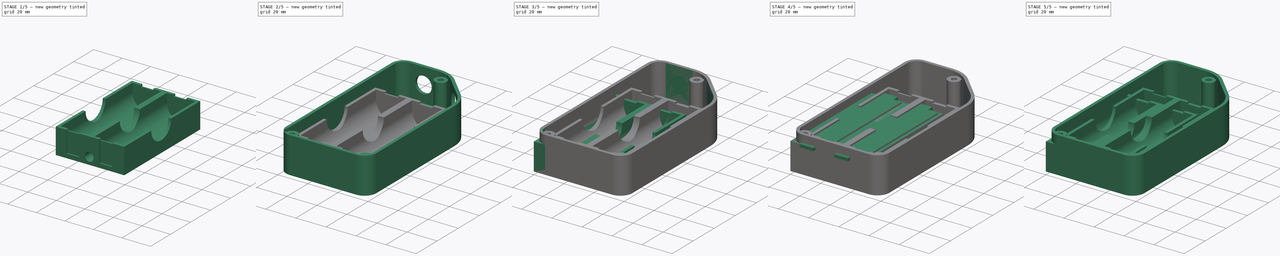
[diagram: build sequence overview — one tinted view per stage of 5, left to right]
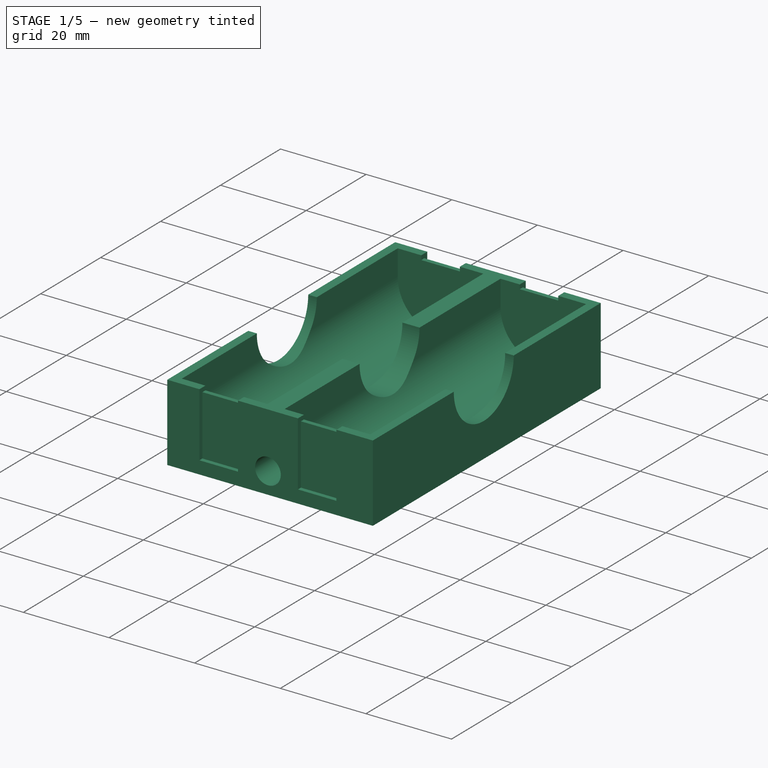
[diagram: stage 1 of 5 — iso view after this stage's code; geometry added in this stage tinted green]
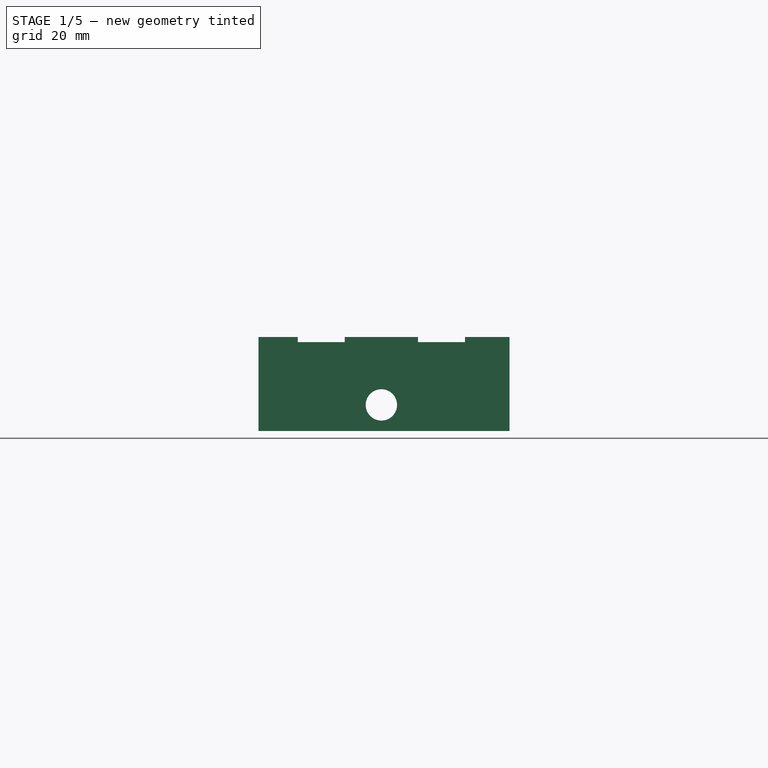
[diagram: stage 1 of 5 — front view after this stage's code; geometry added in this stage tinted green]
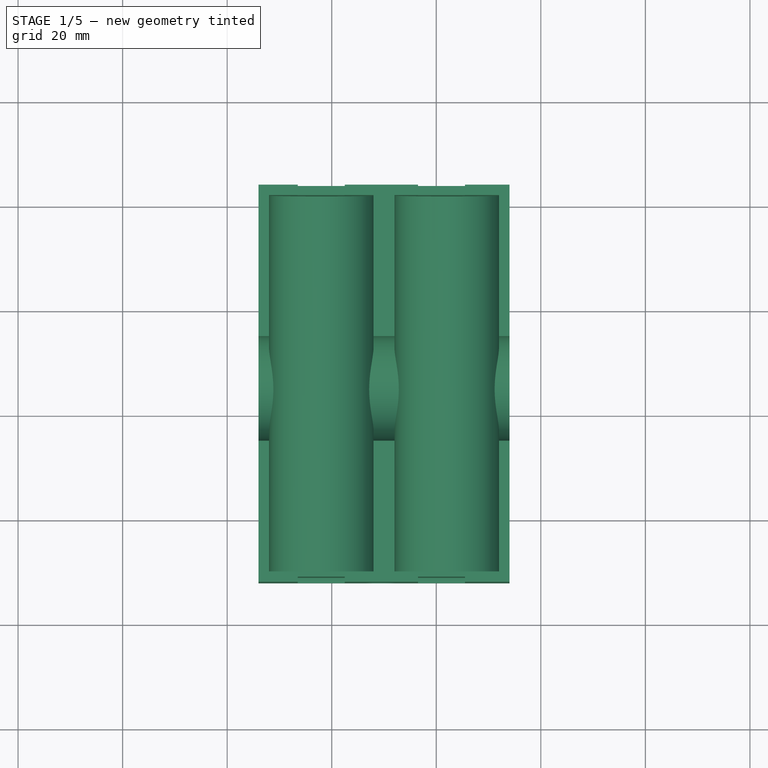
[diagram: stage 1 of 5 — top view after this stage's code; geometry added in this stage tinted green]
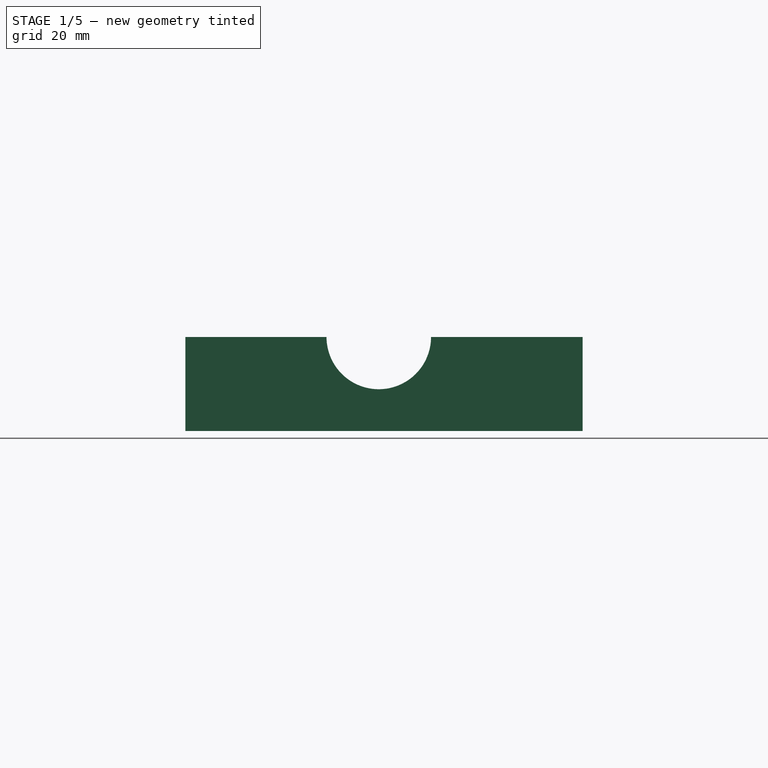
[diagram: stage 1 of 5 — right view after this stage's code; geometry added in this stage tinted green]
FCSTD DOCUMENT
Label: Unified
objects: Sketcher::SketchObject×15, PartDesign::Pocket×13, PartDesign::Pad×6, Part::Cut×4, App::DocumentObjectGroup×2, Part::MultiFuse×1
note: 45 computed .brp shape members not serialized (recipe doc carries the construction recipe); baked Part::Feature solids carry a one-line shape summary decoded from their .brp

FEATURE [Sketcher::SketchObject] Sketch
  sketch-geometry (10):
    g0: LineSegment StartX=60 StartY=8 StartZ=0 EndX=60 EndY=82 EndZ=0
    g1: LineSegment StartX=0 StartY=108 StartZ=0 EndX=0 EndY=8 EndZ=0
    g2: LineSegment StartX=8 StartY=116 StartZ=0 EndX=26 EndY=116 EndZ=0
    g3: LineSegment StartX=8 StartY=0 StartZ=0 EndX=52 EndY=0 EndZ=0
    g4: ArcOfCircle CenterX=8 CenterY=108 CenterZ=0 NormalX=0 NormalY=0 NormalZ=1 Radius=8 StartAngle=1.5708 EndAngle=3.14159
    g5: ArcOfCircle CenterX=52 CenterY=8 CenterZ=0 NormalX=0 NormalY=0 NormalZ=1 Radius=8 StartAngle=4.71239 EndAngle=6.28319
    g6: ArcOfCircle CenterX=8 CenterY=8 CenterZ=0 NormalX=0 NormalY=0 NormalZ=1 Radius=8 StartAngle=3.14159 EndAngle=4.71239
    g7: LineSegment StartX=40.5416 StartY=109.977 StartZ=0 EndX=53.9767 EndY=96.5416 EndZ=0
    g8: ArcOfCircle CenterX=26 CenterY=95.435 CenterZ=0 NormalX=0 NormalY=0 NormalZ=1 Radius=20.565 StartAngle=0.785399 EndAngle=1.5708
    g9: ArcOfCircle CenterX=39.435 CenterY=82 CenterZ=0 NormalX=0 NormalY=0 NormalZ=1 Radius=20.565 StartAngle=6.28319 EndAngle=7.06858
  constraints (34):
    c: Vertical(g0)
    c: Vertical(g1)
    c: Horizontal(g2)
    c: Horizontal(g3)
    c: Coincident(g6,g1)
    c: Coincident(g3,g6)
    c: Coincident(g3,g5)
    c: Coincident(g5,g0)
    c: Coincident(g2,g4)
    c: Coincident(g1,g4)
    c: Radius(g4) = 8
    c: Equal(g5,g6)
    c: Tangent(g4,g2)
    c: Tangent(g5,g3)
    c: DistanceX(g1,g0) = 60
    c: DistanceX(g1) = 0
    c: Tangent(g1,g4)
    c: Tangent(g3,g6)
    c: Tangent(g6,g1)
    c: DistanceY(g3) = 0
    c: Angle(g7) = -0.785398
    c: Coincident(g7,g8)
    c: Coincident(g8,g2)
    c: Tangent(g8,g2)
    c: Tangent(g7,g8)
    c: Coincident(g9,g7)
    c: Tangent(g9,g7)
    c: Coincident(g9,g0)
    c: Distance(g7) = 19
    c: Distance(g2) = 18
    c: Equal(g9,g8)
    c: Equal(g4,g6)
    c: Tangent(g0,g9)
    c: Tangent(g5,g0)
FEATURE [PartDesign::Pad] Pad
  Length = 24
  MirroredExtent = false
  Sketch = -> Sketch
FEATURE [Sketcher::SketchObject] Sketch001
  Placement = pos=(0,0,24) rot=(0,0,1;0rad)
  Support = -> Pad [Face12]
  sketch-geometry (10):
    g0: ArcOfCircle CenterX=8 CenterY=108 CenterZ=0 NormalX=0 NormalY=0 NormalZ=1 Radius=6 StartAngle=1.57079 EndAngle=3.14159
    g1: ArcOfCircle CenterX=26 CenterY=95.435 CenterZ=0 NormalX=0 NormalY=0 NormalZ=1 Radius=18.565 StartAngle=0.785398 EndAngle=1.5708
    g2: ArcOfCircle CenterX=39.435 CenterY=82 CenterZ=0 NormalX=0 NormalY=0 NormalZ=1 Radius=18.565 StartAngle=6.28319 EndAngle=7.06858
    g3: ArcOfCircle CenterX=52 CenterY=8 CenterZ=0 NormalX=0 NormalY=0 NormalZ=1 Radius=6 StartAngle=4.71239 EndAngle=6.28319
    g4: ArcOfCircle CenterX=8 CenterY=8 CenterZ=0 NormalX=0 NormalY=0 NormalZ=1 Radius=6 StartAngle=3.14159 EndAngle=4.71239
    g5: LineSegment StartX=8.00001 StartY=114 StartZ=0 EndX=26 EndY=114 EndZ=0
    g6: LineSegment StartX=2 StartY=108 StartZ=0 EndX=2 EndY=8 EndZ=0
    g7: LineSegment StartX=39.1274 StartY=108.562 StartZ=0 EndX=52.5624 EndY=95.1274 EndZ=0
    g8: LineSegment StartX=58 StartY=82 StartZ=0 EndX=58 EndY=8 EndZ=0
    g9: LineSegment StartX=8 StartY=2 StartZ=0 EndX=52 EndY=2 EndZ=0
  constraints (35):
    c: Horizontal(g5)
    c: Tangent(g5,g1)
    c: Coincident(g1,g5)
    c: Coincident(g0,g5)
    c: Vertical(g6)
    c: Tangent(g6,g0)
    c: Coincident(g4,g6)
    c: Coincident(g0,g6)
    c: Coincident(g2,g7)
    c: Coincident(g1,g7)
    c: Vertical(g8)
    c: Coincident(g3,g8)
    c: Coincident(g2,g8)
    c: Horizontal(g9)
    c: Coincident(g9,g3)
    c: Coincident(g9,g4)
    c: Radius(g0) = 6
    c: Equal(g0,g4)
    c: Tangent(g7,g1)
    c: Tangent(g2,g8)
    c: DistanceY(g2,g3) = -80
    c: Equal(g3,g4)
    c: Distance(g7) = 19
    c: Distance(g5) = 18
    c: DistanceX(g4) = 8
    c: DistanceY(g4) = 8
    c: Tangent(g2,g7)
    c: Tangent(g4,g6)
    c: Tangent(g4,g9)
    c: Tangent(g5,g0)
    c: Tangent(g3,g8)
    c: Tangent(g3,g9)
    c: DistanceX(g4,g3) = 44
    c: DistanceY(g6) = -100
    c: Radius(g2) = 18.565
FEATURE [PartDesign::Pocket] Pocket
  Length = 22
  Sketch = -> Sketch001
  Type = 0
FEATURE [Sketcher::SketchObject] Sketch002
  Placement = pos=(75.2591,75.2592,0) rot=(0.281085,0.678598,0.678598;2.59356rad)
  Support = -> Pocket [Face7]
  sketch-geometry (1):
    g0: Circle CenterX=39.5 CenterY=13 CenterZ=0 NormalX=0 NormalY=0 NormalZ=1 Radius=8.25
  constraints (3):
    c: Radius(g0) = 8.25
    c: DistanceX(g0) = 39.5
    c: DistanceY(g0) = 13
FEATURE [PartDesign::Pocket] Pocket001
  Length = 3
  Sketch = -> Sketch002
  Type = 0
FEATURE [Sketcher::SketchObject] Sketch003
  Placement = pos=(0,116,0) rot=(0,0.707107,0.707107;3.14159rad)
  Support = -> Pocket001 [Face11]
  sketch-geometry (1):
    g0: Circle CenterX=-17 CenterY=13 CenterZ=0 NormalX=0 NormalY=0 NormalZ=1 Radius=5.5
  constraints (3):
    c: Radius(g0) = 5.5
    c: DistanceX(g0) = -17
    c: DistanceY(g0) = 13
FEATURE [PartDesign::Pocket] Pocket002  label="Body"
  Length = 3
  Sketch = -> Sketch003
  Type = 0
FEATURE [Sketcher::SketchObject] Sketch019
  Placement = pos=(0,76,0) rot=(0,0.707107,0.707107;3.14159rad)
  Support = -> Pocket002 [Face5]
  sketch-geometry (9):
    g0: LineSegment StartX=-39.5 StartY=17 StartZ=0 EndX=-30.5 EndY=17 EndZ=0
    g1: LineSegment StartX=-30.5 StartY=17 StartZ=0 EndX=-30.5 EndY=3 EndZ=0
    g2: LineSegment StartX=-30.5 StartY=3 StartZ=0 EndX=-39.5 EndY=3 EndZ=0
    g3: LineSegment StartX=-39.5 StartY=3 StartZ=0 EndX=-39.5 EndY=17 EndZ=0
    g4: LineSegment StartX=-16.5 StartY=17 StartZ=0 EndX=-7.5 EndY=17 EndZ=0
    g5: LineSegment StartX=-7.5 StartY=17 StartZ=0 EndX=-7.5 EndY=3 EndZ=0
    g6: LineSegment StartX=-7.5 StartY=3 StartZ=0 EndX=-16.5 EndY=3 EndZ=0
    g7: LineSegment StartX=-16.5 StartY=3 StartZ=0 EndX=-16.5 EndY=17 EndZ=0
    g8: LineSegment [constr] StartX=-30.5 StartY=17 StartZ=0 EndX=-16.5 EndY=17 EndZ=0
  constraints (26):
    c: Coincident(g0,g1)
    c: Coincident(g1,g2)
    c: Coincident(g2,g3)
    c: Coincident(g3,g0)
    c: Horizontal(g0)
    c: Horizontal(g2)
    c: Vertical(g1)
    c: Vertical(g3)
    c: Coincident(g4,g5)
    c: Coincident(g5,g6)
    c: Coincident(g6,g7)
    c: Coincident(g7,g4)
    c: Horizontal(g4)
    c: Horizontal(g6)
    c: Vertical(g5)
    c: Vertical(g7)
    c: DistanceY(g3) = 14
    c: Equal(g7,g3)
    c: DistanceX(g0) = 9
    c: Equal(g4,g0)
    c: Horizontal(g8)
    c: Coincident(g8,g4)
    c: Coincident(g8,g0)
    c: DistanceX(g2) = -39.5
    c: DistanceY(g2) = 3
    c: DistanceX(g0,g4) = 14
FEATURE [PartDesign::Pocket] Pocket014
  Length = 1
  Placement = pos=(6,8,2) rot=(0,0,1;0rad)
  Sketch = -> Sketch019
  Type = 0
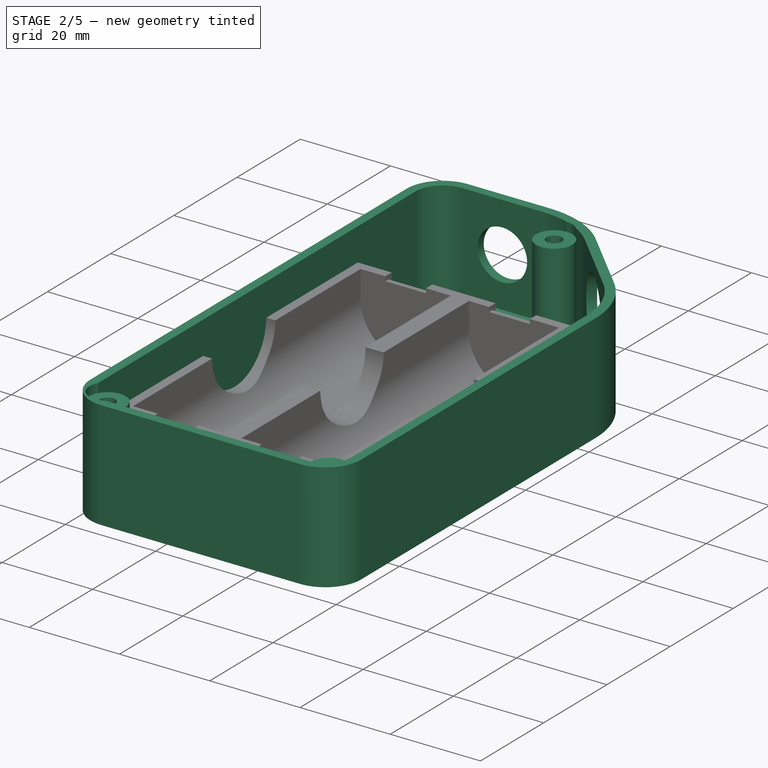
[diagram: stage 2 of 5 — iso view after this stage's code; geometry added in this stage tinted green]
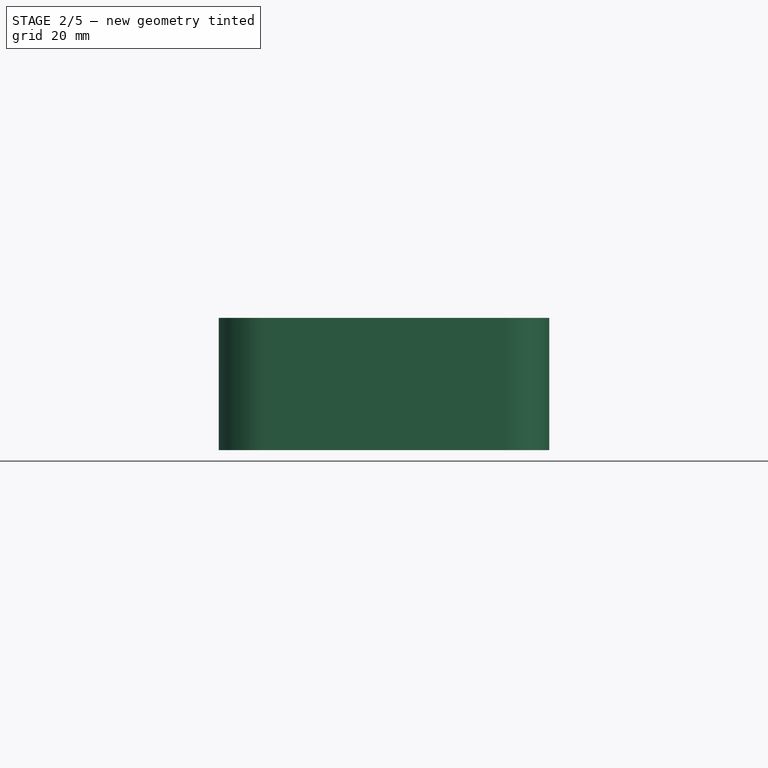
[diagram: stage 2 of 5 — front view after this stage's code; geometry added in this stage tinted green]
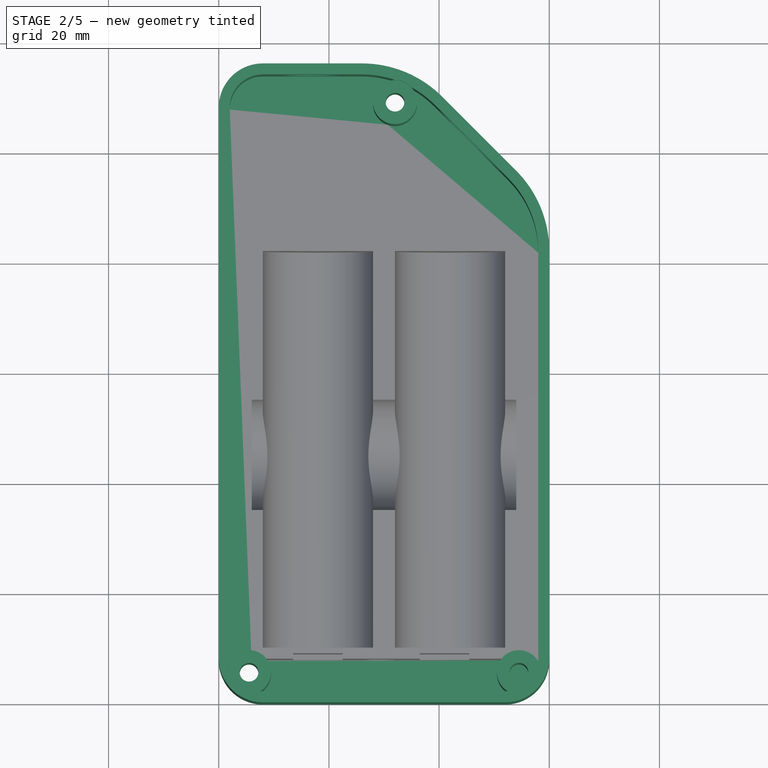
[diagram: stage 2 of 5 — top view after this stage's code; geometry added in this stage tinted green]
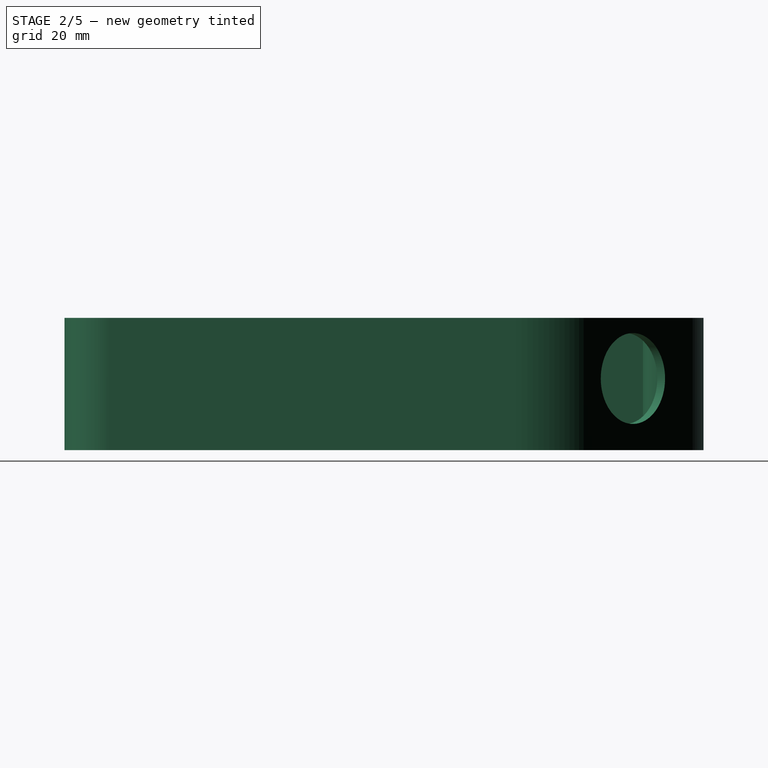
[diagram: stage 2 of 5 — right view after this stage's code; geometry added in this stage tinted green]
FEATURE [Sketcher::SketchObject] Sketch009
  Placement = pos=(0,0,0) rot=(1,0,0;3.14159rad)
  Support = -> Pocket002 [Face4]
  sketch-geometry (1):
    g0: Circle CenterX=32 CenterY=-109 CenterZ=0 NormalX=0 NormalY=0 NormalZ=1 Radius=4
  constraints (3):
    c: Radius(g0) = 4
    c: DistanceX(g0) = 32
    c: DistanceY(g0) = -109
FEATURE [PartDesign::Pocket] Pocket004  label="PostPocket001"
  Length = 30
  Sketch = -> Sketch009
  Type = 0
FEATURE [Sketcher::SketchObject] Sketch010
  Placement = pos=(0,0,0) rot=(1,0,0;3.14159rad)
  Support = -> Pocket004 [Face4]
  sketch-geometry (1):
    g0: Circle CenterX=5.5 CenterY=-5.5 CenterZ=0 NormalX=0 NormalY=0 NormalZ=1 Radius=4
  constraints (3):
    c: Radius(g0) = 4
    c: DistanceX(g0) = 5.5
    c: DistanceY(g0) = -5.5
FEATURE [PartDesign::Pocket] Pocket005  label="PostPocket002"
  Length = 30
  Sketch = -> Sketch010
  Type = 0
FEATURE [PartDesign::Pocket] Pocket008  label="Post001"
  Length = 30
  Placement = pos=(5.5,5.5,22) rot=(1,0,0;3.14159rad)
  Sketch = -> Sketch002
  Type = 0
FEATURE [PartDesign::Pocket] Pocket009  label="Post002"
  Length = 30
  Placement = pos=(54.5,5.5,22) rot=(1,0,0;3.14159rad)
  Sketch = -> Sketch002
  Type = 0
FEATURE [PartDesign::Pocket] Pocket010  label="Post003"
  Length = 30
  Placement = pos=(32,109,22) rot=(1,0,0;3.14159rad)
  Sketch = -> Sketch002
  Type = 0
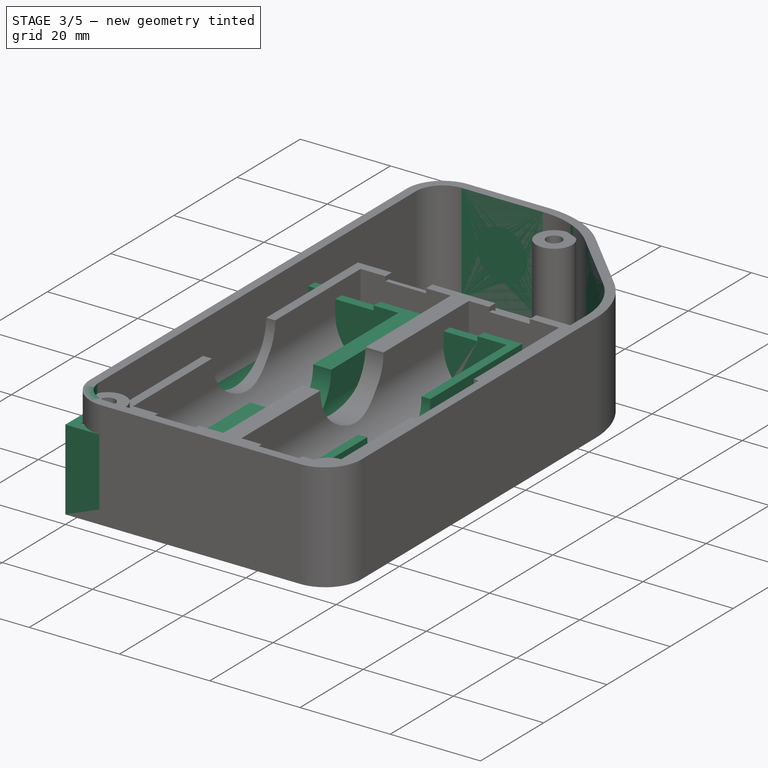
[diagram: stage 3 of 5 — iso view after this stage's code; geometry added in this stage tinted green]
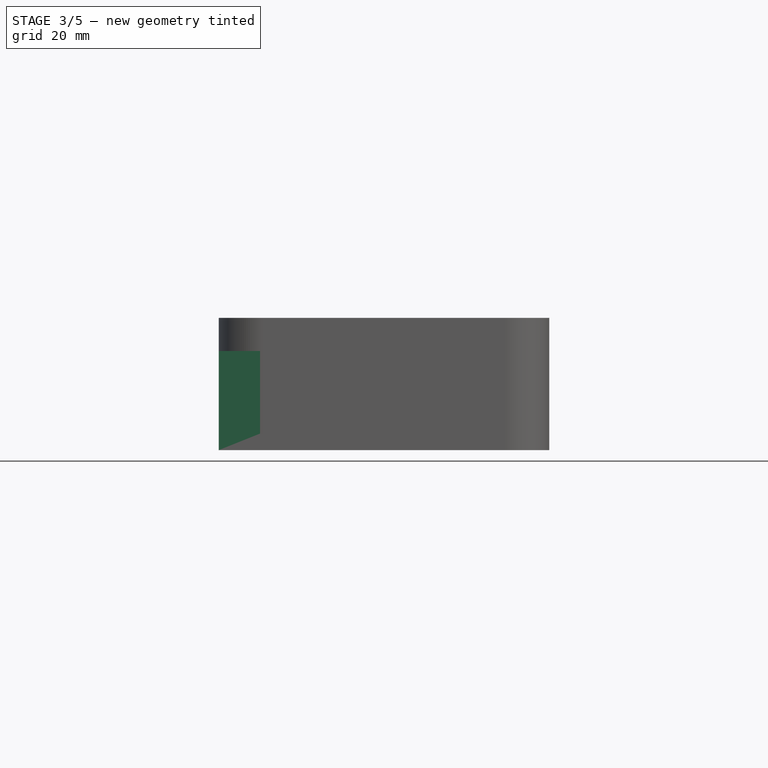
[diagram: stage 3 of 5 — front view after this stage's code; geometry added in this stage tinted green]
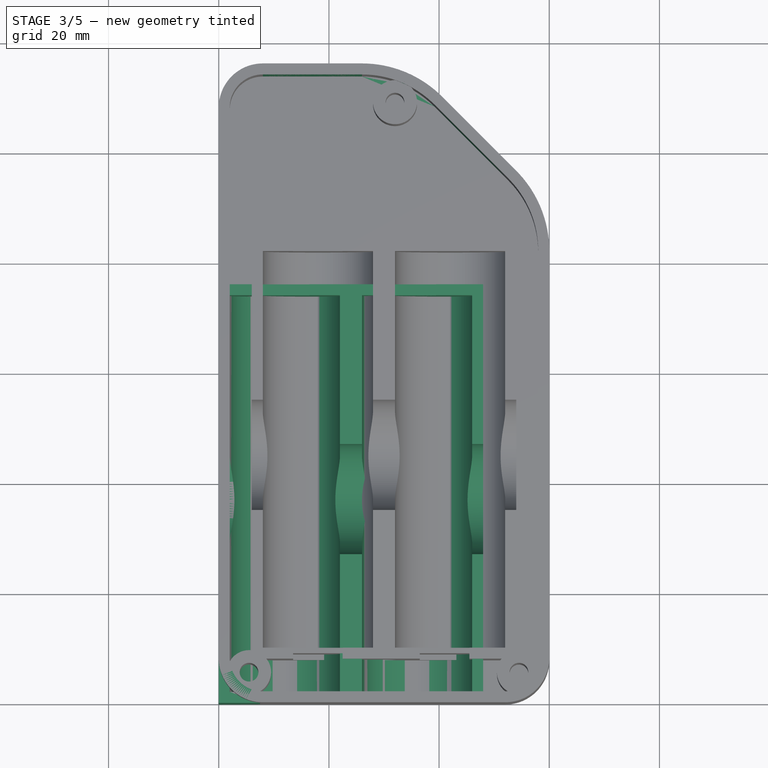
[diagram: stage 3 of 5 — top view after this stage's code; geometry added in this stage tinted green]
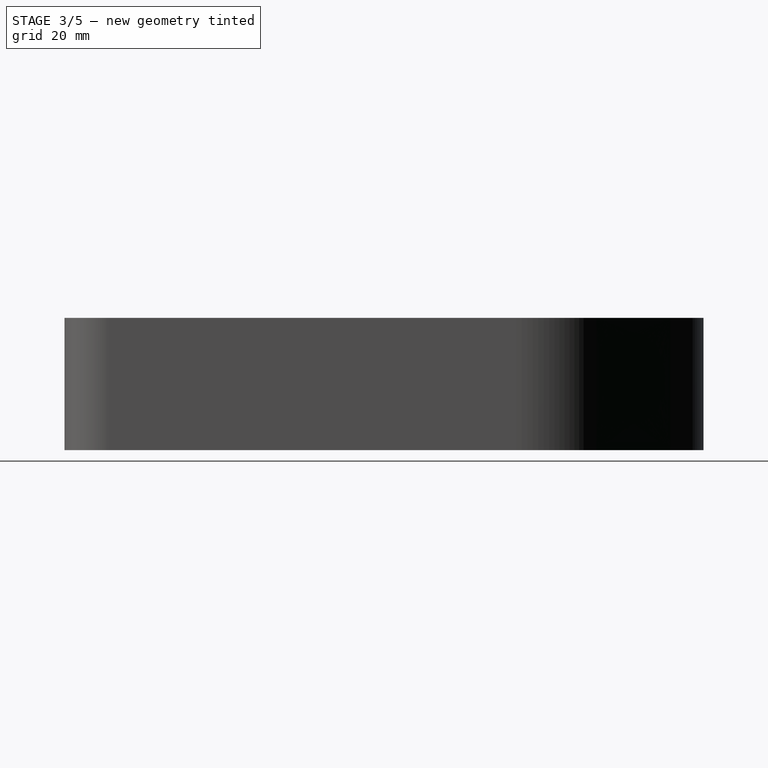
[diagram: stage 3 of 5 — right view after this stage's code; geometry added in this stage tinted green]
FEATURE [Sketcher::SketchObject] Sketch011
  Placement = pos=(0,0,0) rot=(1,0,0;3.14159rad)
  Support = -> Pocket005 [Face4]
  sketch-geometry (1):
    g0: Circle CenterX=54.5 CenterY=-5.5 CenterZ=0 NormalX=0 NormalY=0 NormalZ=1 Radius=4
  constraints (3):
    c: Radius(g0) = 4
    c: DistanceX(g0) = 54.5
    c: DistanceY(g0) = -5.5
FEATURE [PartDesign::Pocket] Pocket006  label="PostPocket003"
  Length = 30
  Sketch = -> Sketch011
  Type = 0
FEATURE [Sketcher::SketchObject] Sketch017
  Placement = pos=(0,0,0) rot=(1,0,0;1.5708rad)
  Support = -> Pocket [Face18]
  sketch-geometry (1):
    g0: Circle CenterX=23.5 CenterY=5 CenterZ=0 NormalX=0 NormalY=0 NormalZ=1 Radius=2.5
  constraints (3):
    c: Radius(g0) = 2.5
    c: DistanceX(g0) = 23.5
    c: DistanceY(g0) = 5
FEATURE [PartDesign::Pocket] Pocket012
  Length = 76
  Sketch = -> Sketch017
  Type = 0
FEATURE [Sketcher::SketchObject] Sketch018
  Placement = pos=(0,0,0) rot=(1,0,0;1.5708rad)
  Support = -> Pocket001 [Face22]
  sketch-geometry (9):
    g0: LineSegment StartX=7.5 StartY=17 StartZ=0 EndX=16.5 EndY=17 EndZ=0
    g1: LineSegment StartX=16.5 StartY=17 StartZ=0 EndX=16.5 EndY=3 EndZ=0
    g2: LineSegment StartX=16.5 StartY=3 StartZ=0 EndX=7.5 EndY=3 EndZ=0
    g3: LineSegment StartX=7.5 StartY=3 StartZ=0 EndX=7.5 EndY=17 EndZ=0
    g4: LineSegment StartX=30.5 StartY=3 StartZ=0 EndX=39.5 EndY=3 EndZ=0
    g5: LineSegment StartX=39.5 StartY=3 StartZ=0 EndX=39.5 EndY=17 EndZ=0
    g6: LineSegment StartX=39.5 StartY=17 StartZ=0 EndX=30.5 EndY=17 EndZ=0
    g7: LineSegment StartX=30.5 StartY=17 StartZ=0 EndX=30.5 EndY=3 EndZ=0
    g8: LineSegment [constr] StartX=30.5 StartY=17 StartZ=0 EndX=16.5 EndY=17 EndZ=0
  constraints (26):
    c: Coincident(g0,g1)
    c: Coincident(g1,g2)
    c: Coincident(g2,g3)
    c: Coincident(g3,g0)
    c: Horizontal(g0)
    c: Horizontal(g2)
    c: Vertical(g1)
    c: Vertical(g3)
    c: DistanceX(g0) = 9
    c: DistanceY(g3) = 14
    c: DistanceX(g2) = 7.5
    c: DistanceY(g2) = 3
    c: Coincident(g4,g5)
    c: Coincident(g5,g6)
    c: Coincident(g6,g7)
    c: Coincident(g7,g4)
    c: Horizontal(g4)
    c: Horizontal(g6)
    c: Vertical(g5)
    c: Vertical(g7)
    c: Equal(g6,g0)
    c: Equal(g7,g3)
    c: Horizontal(g8)
    c: Coincident(g8,g6)
    c: Coincident(g8,g0)
    c: DistanceX(g8) = -14
FEATURE [PartDesign::Pocket] Pocket013
  Length = 1
  Sketch = -> Sketch018
  Type = 0
FEATURE [App::DocumentObjectGroup] Group  label="BatterySled"
  Group = -> [Pocket011,Pocket012,Pocket013,Pocket014,Cut003]
FEATURE [App::DocumentObjectGroup] Group001  label="Posts"
  Group = -> [Pocket004,Pocket010,Pocket009,Pocket008,Pocket006,Pocket005]
FEATURE [Part::MultiFuse] Fusion
  Shapes = -> [Pocket014,Pocket010,Pocket009,Pocket008,Pocket006]
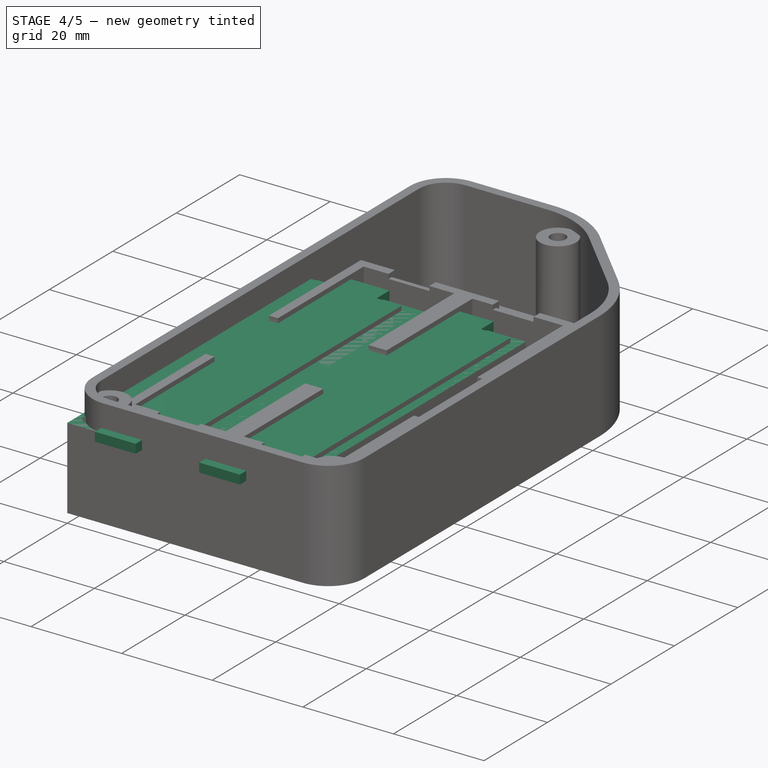
[diagram: stage 4 of 5 — iso view after this stage's code; geometry added in this stage tinted green]
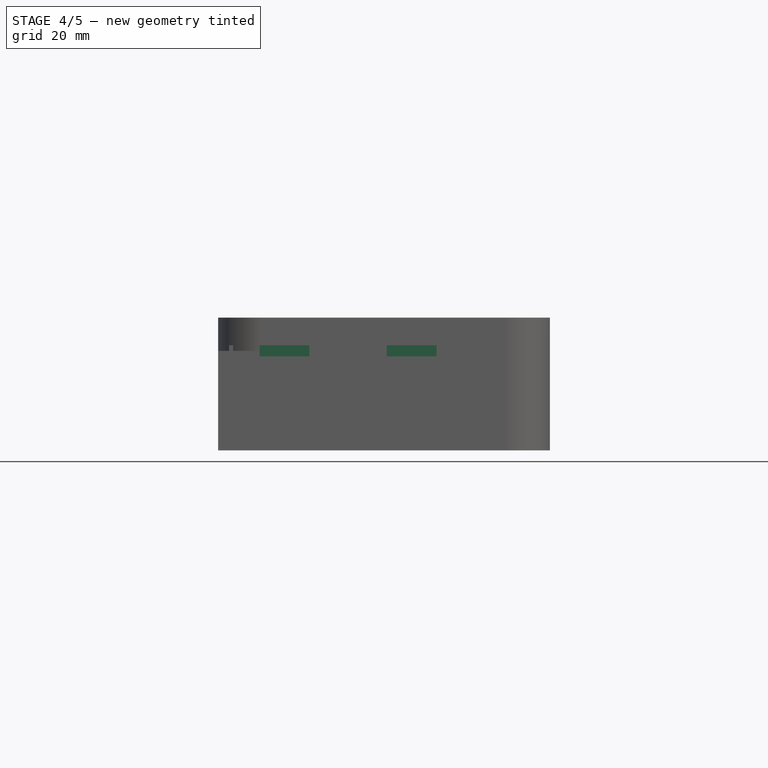
[diagram: stage 4 of 5 — front view after this stage's code; geometry added in this stage tinted green]
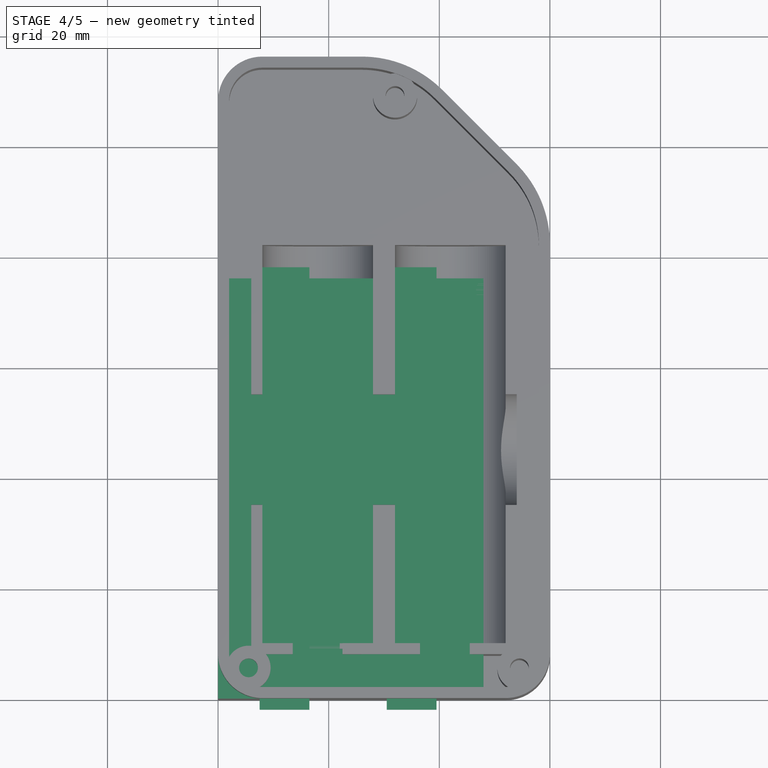
[diagram: stage 4 of 5 — top view after this stage's code; geometry added in this stage tinted green]
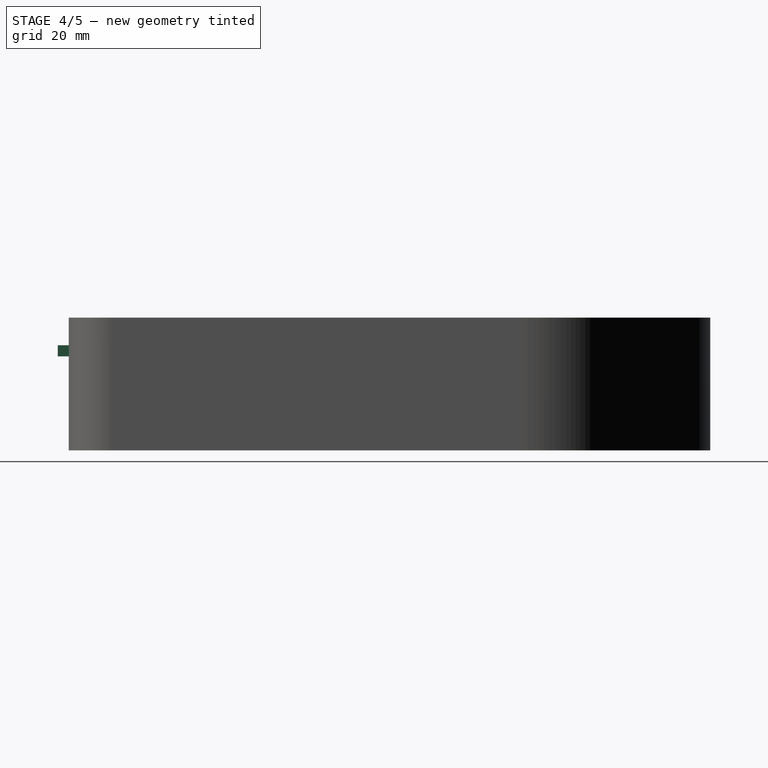
[diagram: stage 4 of 5 — right view after this stage's code; geometry added in this stage tinted green]
FEATURE [Sketcher::SketchObject] Sketch012
  sketch-geometry (4):
    g0: LineSegment StartX=0 StartY=0 StartZ=0 EndX=48 EndY=0 EndZ=0
    g1: LineSegment StartX=48 StartY=0 StartZ=0 EndX=48 EndY=76 EndZ=0
    g2: LineSegment StartX=48 StartY=76 StartZ=0 EndX=0 EndY=76 EndZ=0
    g3: LineSegment StartX=0 StartY=76 StartZ=0 EndX=0 EndY=0 EndZ=0
  constraints (12):
    c: Coincident(g0,g1)
    c: Coincident(g1,g2)
    c: Coincident(g2,g3)
    c: Coincident(g3,g0)
    c: Horizontal(g0)
    c: Horizontal(g2)
    c: Vertical(g1)
    c: Vertical(g3)
    c: DistanceY(g3) = -76
    c: DistanceX(g0) = 48
    c: DistanceX(g0) = 0
    c: DistanceY(g0) = 0
FEATURE [PartDesign::Pad] Pad001
  Length = 18
  MirroredExtent = false
  Sketch = -> Sketch012
FEATURE [Sketcher::SketchObject] Sketch013
  Placement = pos=(0,0,0) rot=(1,0,0;1.5708rad)
  sketch-geometry (4):
    g0: LineSegment StartX=2 StartY=19 StartZ=0 EndX=22 EndY=19 EndZ=0
    g1: LineSegment StartX=22 StartY=19 StartZ=0 EndX=22 EndY=12 EndZ=0
    g2: LineSegment StartX=2 StartY=12 StartZ=0 EndX=2 EndY=19 EndZ=0
    g3: ArcOfCircle CenterX=12 CenterY=12 CenterZ=0 NormalX=0 NormalY=0 NormalZ=1 Radius=10 StartAngle=3.1416 EndAngle=6.28319
  constraints (13):
    c: Coincident(g0,g1)
    c: Coincident(g2,g0)
    c: Horizontal(g0)
    c: Vertical(g1)
    c: Vertical(g2)
    c: Coincident(g3,g1)
    c: Coincident(g3,g2)
    c: Tangent(g3,g2)
    c: DistanceX(g0) = 20
    c: DistanceY(g2) = 7
    c: Tangent(g3,g1)
    c: DistanceX(g3) = 12
    c: DistanceY(g3) = 12
FEATURE [PartDesign::Pad] Pad002
  Length = 72
  MirroredExtent = false
  Placement = pos=(0,74,0) rot=(0,0,1;0rad)
  Sketch = -> Sketch013
FEATURE [Sketcher::SketchObject] Sketch014
  Placement = pos=(0,0,0) rot=(1,0,0;1.5708rad)
  sketch-geometry (4):
    g0: LineSegment StartX=25 StartY=19 StartZ=0 EndX=45 EndY=19 EndZ=0
    g1: LineSegment StartX=45 StartY=19 StartZ=0 EndX=45 EndY=12 EndZ=0
    g2: LineSegment StartX=25 StartY=12 StartZ=0 EndX=25 EndY=19 EndZ=0
    g3: ArcOfCircle CenterX=35 CenterY=12 CenterZ=0 NormalX=0 NormalY=0 NormalZ=1 Radius=10 StartAngle=3.14159 EndAngle=6.28319
  constraints (13):
    c: Coincident(g0,g1)
    c: Coincident(g2,g0)
    c: Horizontal(g0)
    c: Vertical(g1)
    c: Vertical(g2)
    c: Coincident(g3,g1)
    c: Coincident(g3,g2)
    c: Tangent(g3,g2)
    c: DistanceX(g0) = 20
    c: DistanceY(g2) = 7
    c: Tangent(g3,g1)
    c: DistanceX(g3) = 35
    c: DistanceY(g3) = 12
FEATURE [PartDesign::Pad] Pad003
  Length = 72
  MirroredExtent = false
  Placement = pos=(1,74,0) rot=(0,0,1;0rad)
  Sketch = -> Sketch014
FEATURE [Sketcher::SketchObject] Sketch015
  Placement = pos=(0,0,0) rot=(1,0,0;1.5708rad)
  sketch-geometry (4):
    g0: LineSegment StartX=7.5 StartY=17 StartZ=0 EndX=16.5 EndY=17 EndZ=0
    g1: LineSegment StartX=16.5 StartY=17 StartZ=0 EndX=16.5 EndY=19 EndZ=0
    g2: LineSegment StartX=16.5 StartY=19 StartZ=0 EndX=7.5 EndY=19 EndZ=0
    g3: LineSegment StartX=7.5 StartY=19 StartZ=0 EndX=7.5 EndY=17 EndZ=0
  constraints (12):
    c: Coincident(g0,g1)
    c: Coincident(g1,g2)
    c: Coincident(g2,g3)
    c: Coincident(g3,g0)
    c: Horizontal(g0)
    c: Horizontal(g2)
    c: Vertical(g1)
    c: Vertical(g3)
    c: DistanceX(g0) = 9
    c: DistanceY(g3) = -2
    c: DistanceX(g0) = 7.5
    c: DistanceY(g0) = 17
FEATURE [PartDesign::Pad] Pad004
  Length = 80
  MirroredExtent = false
  Placement = pos=(0,78,0) rot=(0,0,1;0rad)
  Sketch = -> Sketch015
FEATURE [PartDesign::Pad] Pad005
  Length = 80
  MirroredExtent = false
  Placement = pos=(23,78,0) rot=(0,0,1;0rad)
  Sketch = -> Sketch015
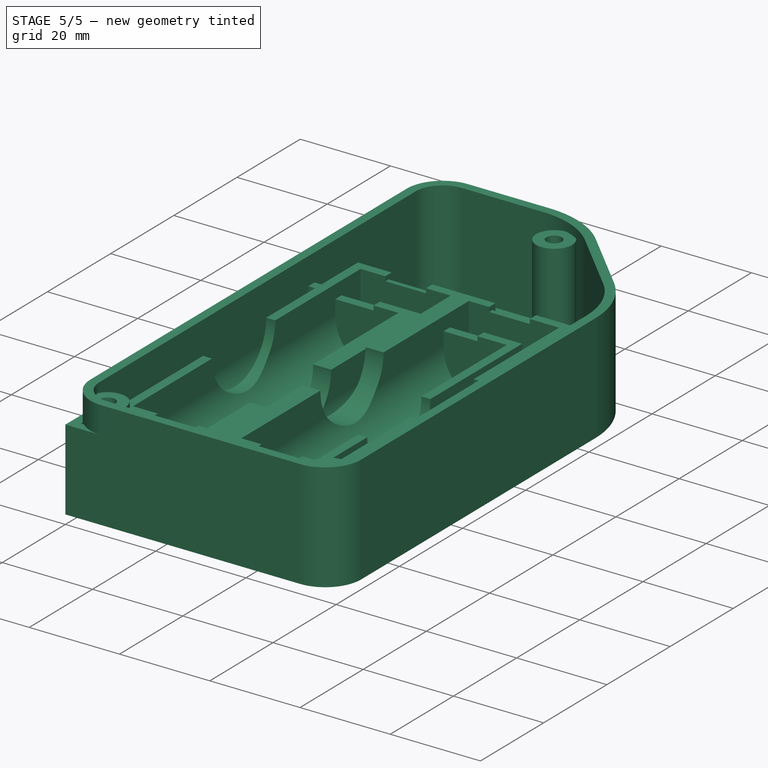
[diagram: stage 5 of 5 — iso view after this stage's code; geometry added in this stage tinted green]
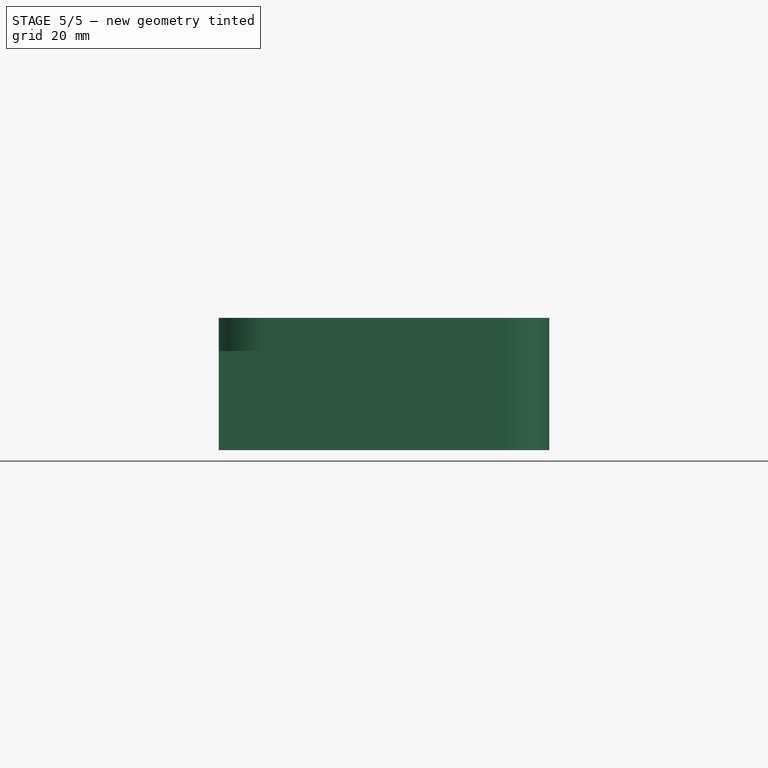
[diagram: stage 5 of 5 — front view after this stage's code; geometry added in this stage tinted green]
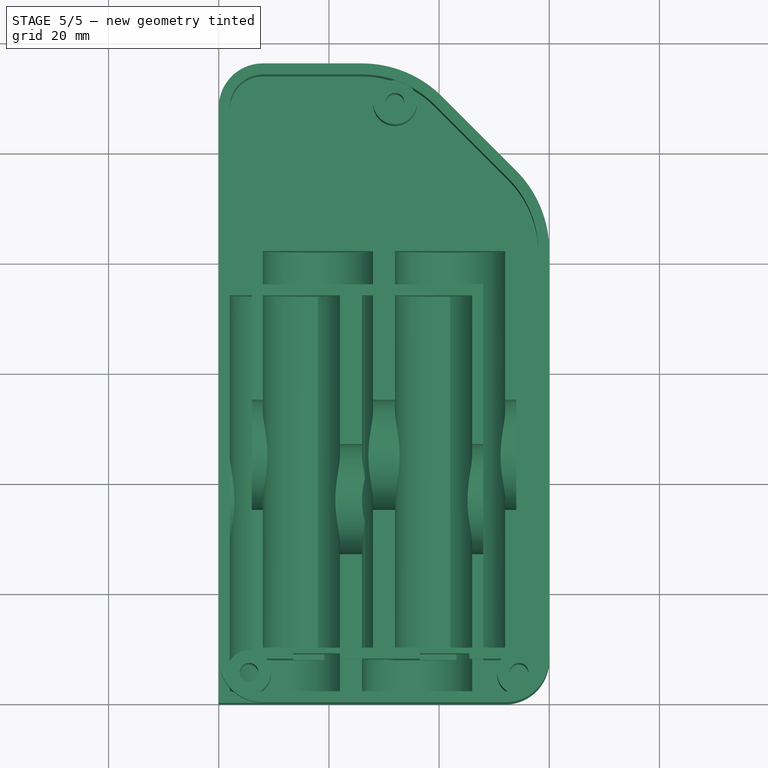
[diagram: stage 5 of 5 — top view after this stage's code; geometry added in this stage tinted green]
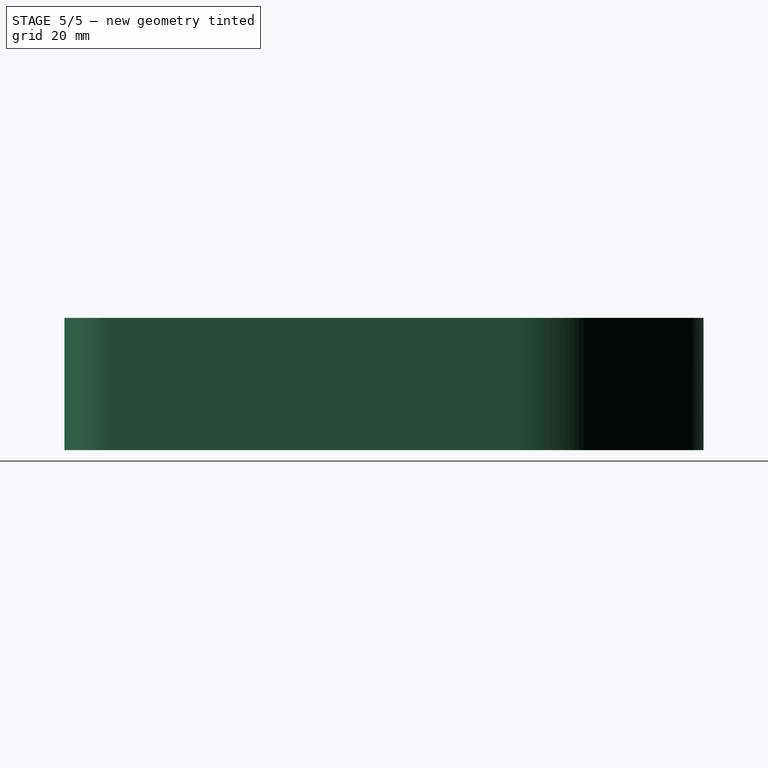
[diagram: stage 5 of 5 — right view after this stage's code; geometry added in this stage tinted green]
FEATURE [Part::Cut] Cut
  Base = -> Pad001
  Tool = -> Pad002
FEATURE [Part::Cut] Cut001
  Base = -> Cut
  Tool = -> Pad003
FEATURE [Part::Cut] Cut002
  Base = -> Cut001
  Tool = -> Pad004
FEATURE [Part::Cut] Cut003
  Base = -> Cut002
  Tool = -> Pad005
FEATURE [Sketcher::SketchObject] Sketch016
  Placement = pos=(48,0,0) rot=(0.57735,0.57735,0.57735;2.0944rad)
  Support = -> Cut003 [Face8]
  sketch-geometry (1):
    g0: Circle CenterX=37 CenterY=18 CenterZ=0 NormalX=0 NormalY=0 NormalZ=1 Radius=10
  constraints (3):
    c: Radius(g0) = 10
    c: DistanceX(g0) = 37
    c: DistanceY(g0) = 18
FEATURE [PartDesign::Pocket] Pocket011
  Length = 50
  Sketch = -> Sketch016
  Type = 0
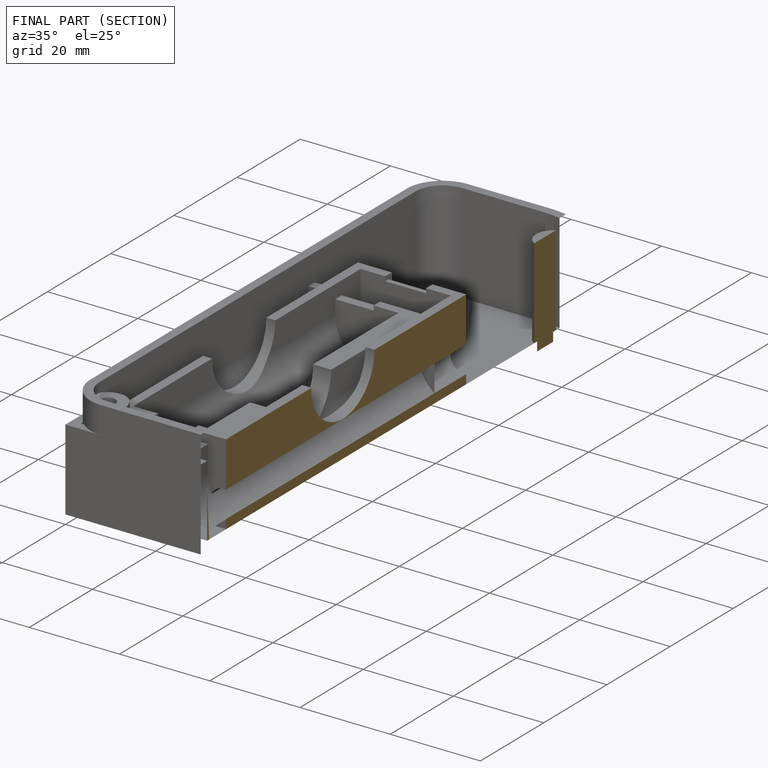
[diagram: finished part — half-section view (interior)]
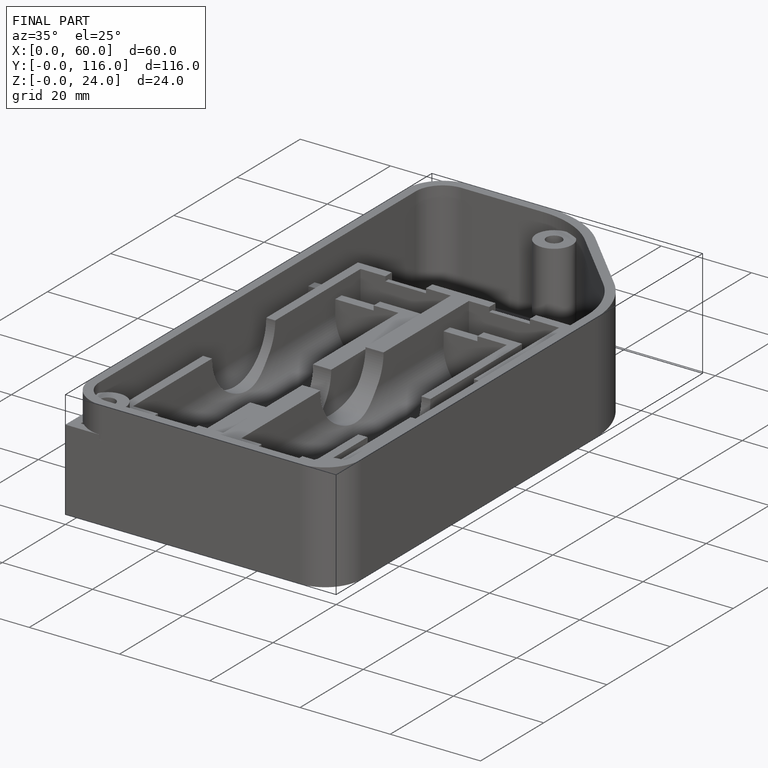
[diagram: finished part — iso view with bounding-box wireframe]
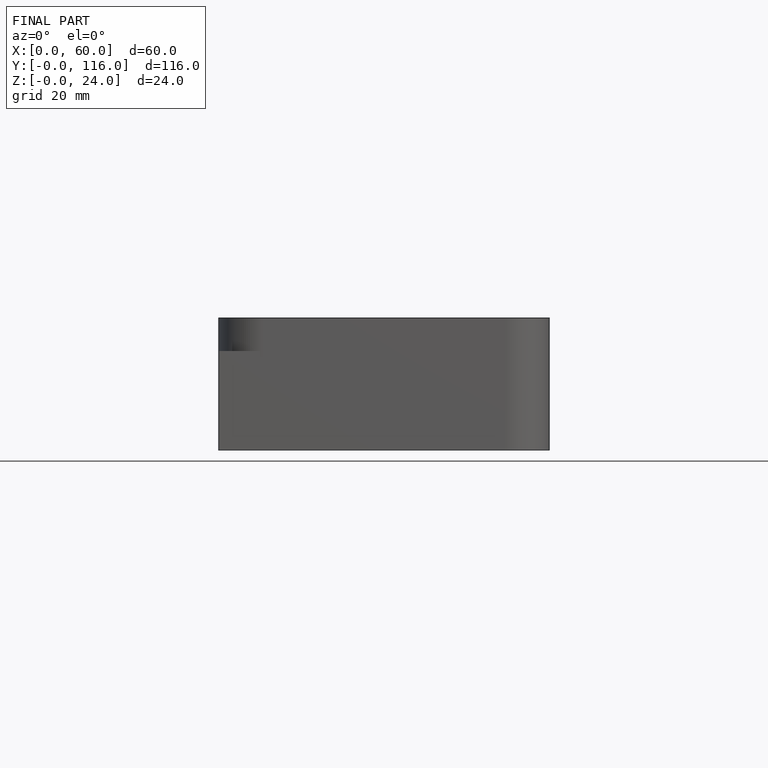
[diagram: finished part — front view with bounding-box wireframe]
